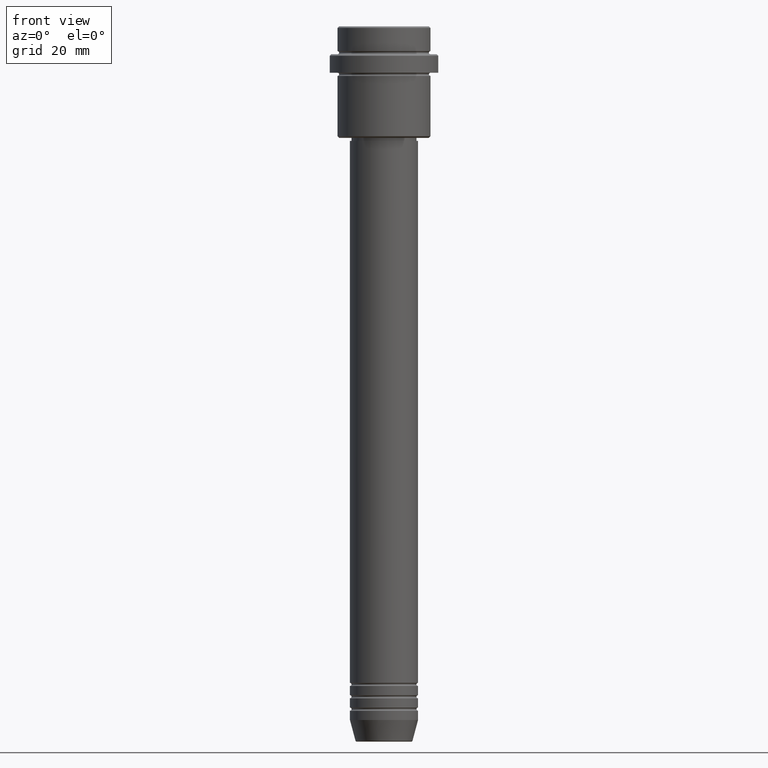
[diagram: clean part render]
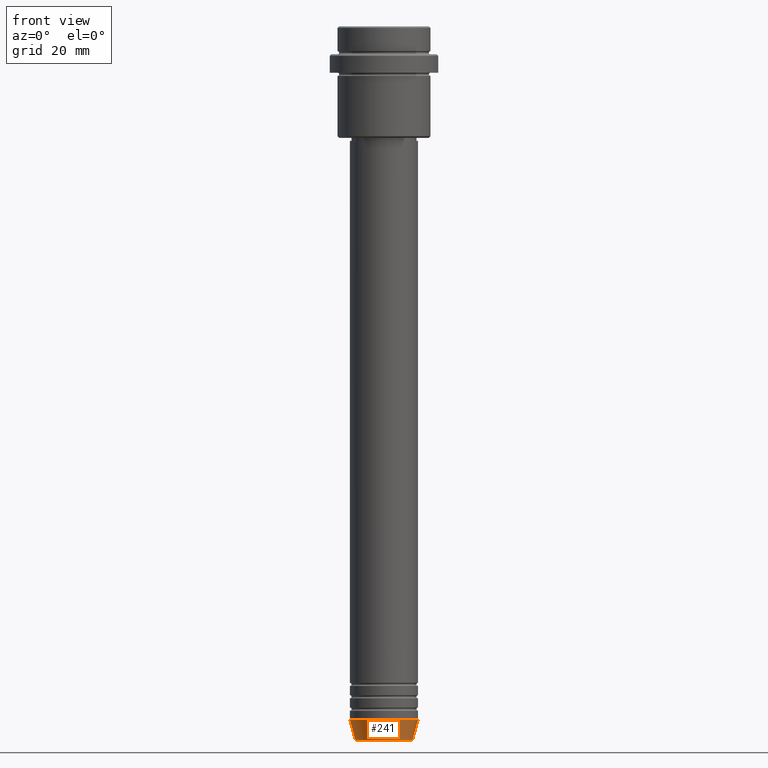
[diagram: same view with one face highlighted and labeled with its STEP entity id]
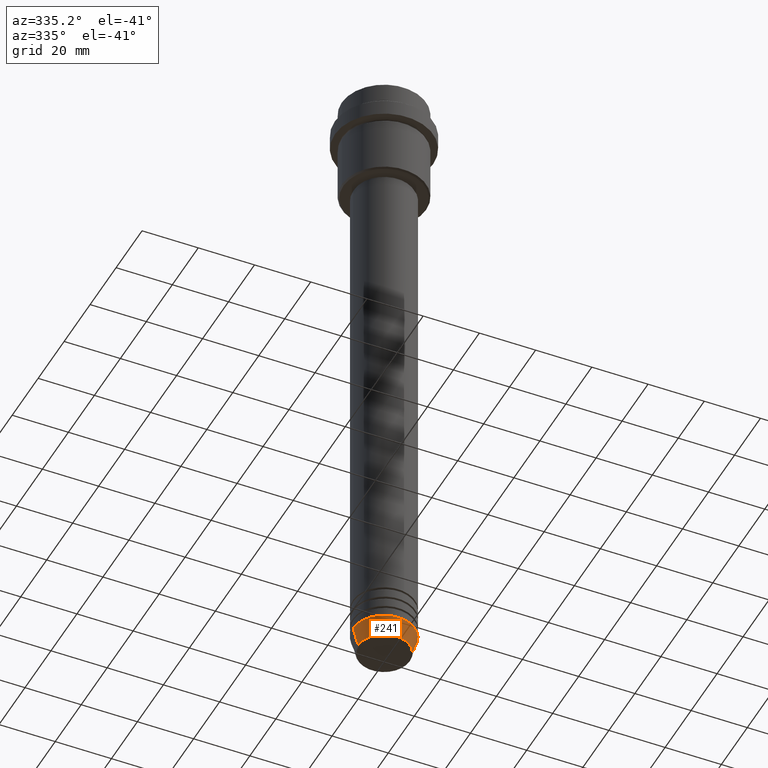
[diagram: same view with one face highlighted and labeled with its STEP entity id]
A machine part, front view. The second image highlights one B-rep face of the part: STEP entity #241.
A second angle (auxiliary view) of the same face is appended — the face is thin or edge-on in the first view.
In plain terms, the highlighted conical surface has half-angle 15 deg.
Its self-contained STEP definition (entity closure, byte-faithful):
#11 = CARTESIAN_POINT ( 'NONE',  ( 11.00000000000000000, 0.000000000000000000, -224.0000000000000284 ) ) ;
#56 = VERTEX_POINT ( 'NONE', #451 ) ;
#68 = VERTEX_POINT ( 'NONE', #11 ) ;
#70 = FACE_OUTER_BOUND ( 'NONE', #940, .T. ) ;
#123 = DIRECTION ( 'NONE',  ( -0.000000000000000000, -0.000000000000000000, 1.000000000000000000 ) ) ;
#133 = EDGE_CURVE ( 'NONE', #1039, #68, #1043, .T. ) ;
#183 = DIRECTION ( 'NONE',  ( 0.2588190451025205174, 0.000000000000000000, 0.9659258262890684232 ) ) ;
#186 = DIRECTION ( 'NONE',  ( 1.000000000000000000, 0.000000000000000000, 0.000000000000000000 ) ) ;
#193 = DIRECTION ( 'NONE',  ( -0.000000000000000000, -0.000000000000000000, 1.000000000000000000 ) ) ;
#220 = DIRECTION ( 'NONE',  ( -0.000000000000000000, -0.000000000000000000, 1.000000000000000000 ) ) ;
#241 = ADVANCED_FACE ( 'NONE', ( #70 ), #1062, .T. ) ;
#286 = LINE ( 'NONE', #1160, #476 ) ;
#451 = CARTESIAN_POINT ( 'NONE',  ( -9.223655072137201927, 1.238341722557647793E-15, -230.6294095225512990 ) ) ;
#476 = VECTOR ( 'NONE', #183, 1000.000000000000114 ) ;
#496 = CIRCLE ( 'NONE', #866, 9.223655072137201927 ) ;
#503 = ORIENTED_EDGE ( 'NONE', *, *, #948, .F. ) ;
#518 = AXIS2_PLACEMENT_3D ( 'NONE', #1263, #193, #186 ) ;
#582 = CARTESIAN_POINT ( 'NONE',  ( -11.00000000000000000, 1.347111479062088405E-15, -224.0000000000000284 ) ) ;
#586 = VERTEX_POINT ( 'NONE', #1279 ) ;
#616 = ORIENTED_EDGE ( 'NONE', *, *, #1066, .T. ) ;
#658 = AXIS2_PLACEMENT_3D ( 'NONE', #1330, #123, #992 ) ;
#690 = LINE ( 'NONE', #582, #1230 ) ;
#866 = AXIS2_PLACEMENT_3D ( 'NONE', #1283, #220, #1412 ) ;
#892 = ORIENTED_EDGE ( 'NONE', *, *, #133, .F. ) ;
#898 = DIRECTION ( 'NONE',  ( -0.2588190451025205174, 3.169619151431761243E-17, 0.9659258262890684232 ) ) ;
#903 = CARTESIAN_POINT ( 'NONE',  ( -11.00000000000000000, 1.347111479062088405E-15, -224.0000000000000284 ) ) ;
#940 = EDGE_LOOP ( 'NONE', ( #503, #1179, #616, #892 ) ) ;
#948 = EDGE_CURVE ( 'NONE', #56, #1039, #690, .T. ) ;
#992 = DIRECTION ( 'NONE',  ( 1.000000000000000000, 0.000000000000000000, 0.000000000000000000 ) ) ;
#1039 = VERTEX_POINT ( 'NONE', #903 ) ;
#1043 = CIRCLE ( 'NONE', #658, 11.00000000000000000 ) ;
#1062 = CONICAL_SURFACE ( 'NONE', #518, 11.00000000000000000, 0.2617993877991491303 ) ;
#1066 = EDGE_CURVE ( 'NONE', #586, #68, #286, .T. ) ;
#1160 = CARTESIAN_POINT ( 'NONE',  ( 11.00000000000000000, 0.000000000000000000, -224.0000000000000284 ) ) ;
#1179 = ORIENTED_EDGE ( 'NONE', *, *, #1218, .T. ) ;
#1218 = EDGE_CURVE ( 'NONE', #56, #586, #496, .T. ) ;
#1230 = VECTOR ( 'NONE', #898, 1000.000000000000114 ) ;
#1263 = CARTESIAN_POINT ( 'NONE',  ( 0.000000000000000000, 0.000000000000000000, -224.0000000000000284 ) ) ;
#1279 = CARTESIAN_POINT ( 'NONE',  ( 9.223655072137201927, 0.000000000000000000, -230.6294095225512990 ) ) ;
#1283 = CARTESIAN_POINT ( 'NONE',  ( 0.000000000000000000, 0.000000000000000000, -230.6294095225512990 ) ) ;
#1330 = CARTESIAN_POINT ( 'NONE',  ( 0.000000000000000000, 0.000000000000000000, -224.0000000000000284 ) ) ;
#1412 = DIRECTION ( 'NONE',  ( 1.000000000000000000, 0.000000000000000000, 0.000000000000000000 ) ) ;